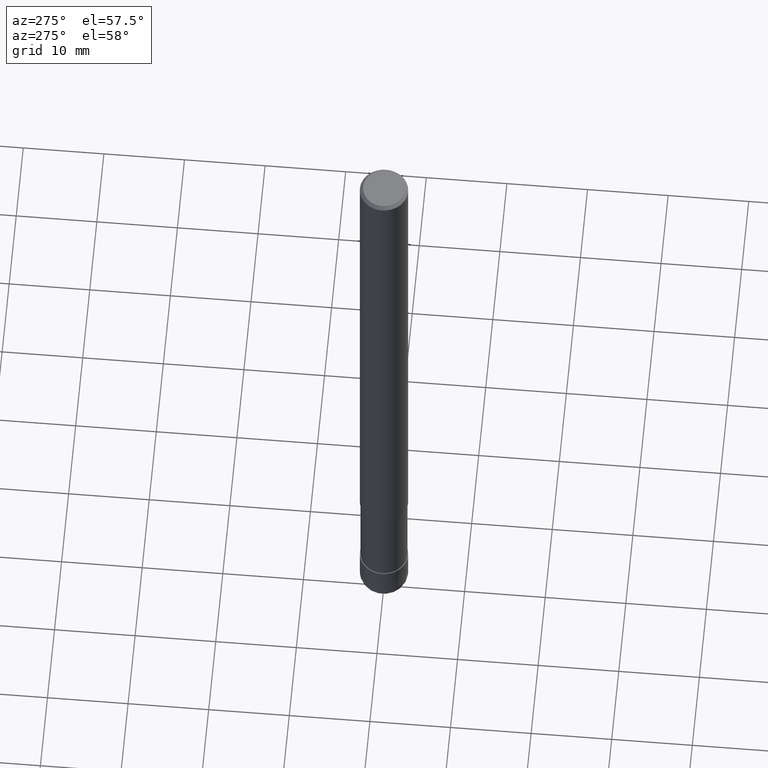
[diagram: clean part render]
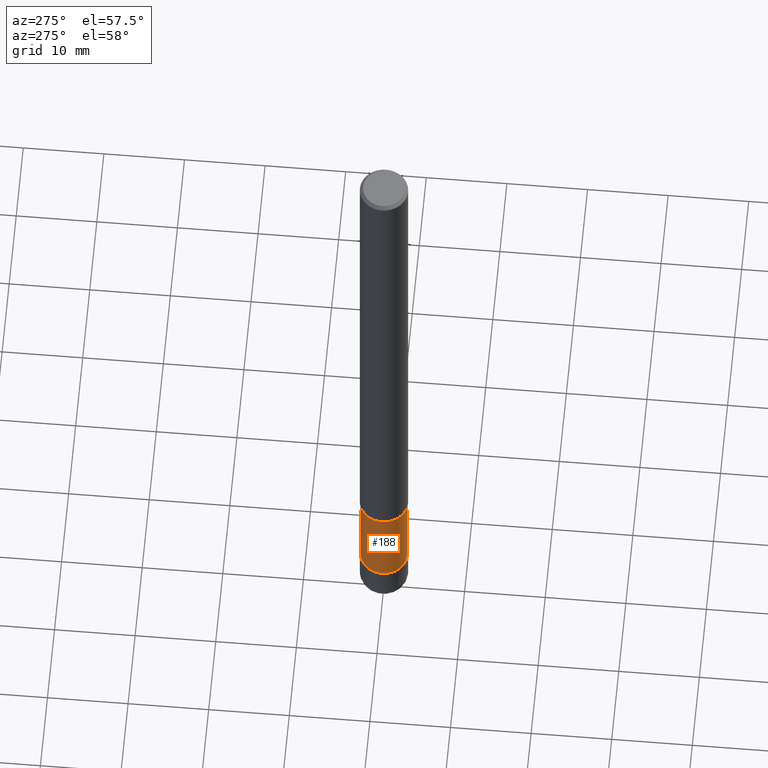
[diagram: same view with one face highlighted and labeled with its STEP entity id]
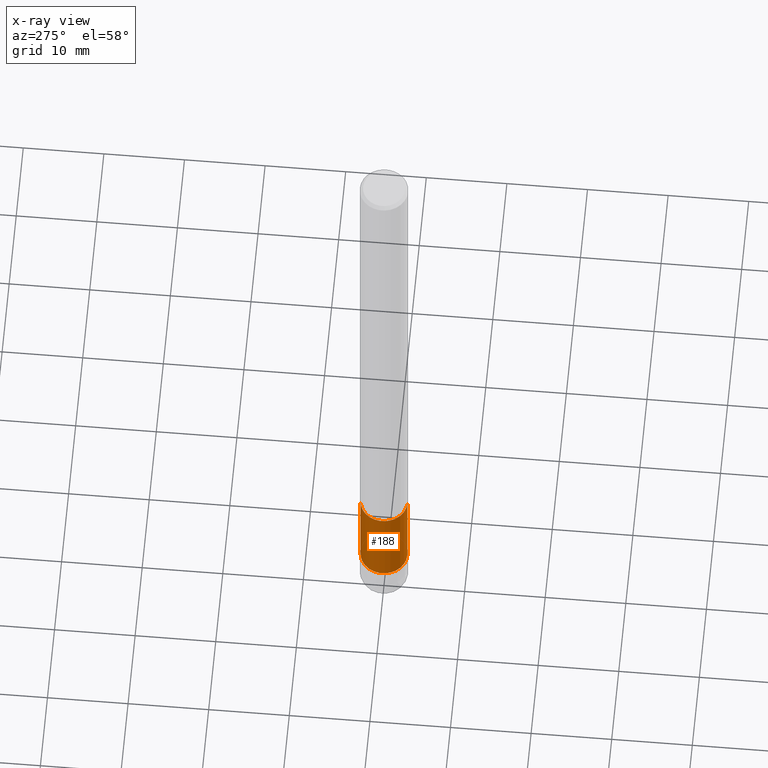
[diagram: x-ray of the same camera — body ghosted, the highlighted face saturated]
A machine part, auxiliary view. The second image highlights one B-rep face of the part: STEP entity #188.
The next image is the same camera in x-ray: the body ghosted, the highlighted face saturated — about 0% of this face is hidden behind the body in this view.
In plain terms, the highlighted cylindrical surface (edge-blend (fillet) strip) has radius 2.9099 mm, axis along (-0, -0, 1).
Its self-contained STEP definition (entity closure, byte-faithful):
#98=EDGE_CURVE('',#206,#120,#236,.T.);
#108=VERTEX_POINT('',#246);
#120=VERTEX_POINT('',#258);
#142=VERTEX_POINT('',#283);
#150=EDGE_CURVE('',#108,#142,#291,.T.);
#156=EDGE_CURVE('',#120,#108,#297,.T.);
#162=EDGE_CURVE('',#206,#142,#303,.T.);
#188=ADVANCED_FACE('',(#336),#337,.T.);
#206=VERTEX_POINT('',#359);
#236=LINE('',#383,#384);
#246=CARTESIAN_POINT('',(0.0,2.90995,-72.0));
#258=CARTESIAN_POINT('',(3.56354325930543E-016,-2.90995,-72.0));
#283=CARTESIAN_POINT('',(0.0,2.90995,-84.0));
#291=LINE('',#453,#454);
#297=CIRCLE('',#464,2.90995);
#303=CIRCLE('',#472,2.90995);
#336=FACE_OUTER_BOUND('',#507,.T.);
#337=CYLINDRICAL_SURFACE('',#508,2.90995);
#359=CARTESIAN_POINT('',(3.56354325930543E-016,-2.90995,-84.0));
#383=CARTESIAN_POINT('',(3.56354325930543E-016,-2.90995,-78.0));
#384=VECTOR('',#549,1.0);
#453=CARTESIAN_POINT('',(-3.56354325930543E-016,2.90995,-78.0));
#454=VECTOR('',#600,1.0);
#464=AXIS2_PLACEMENT_3D('',#605,#606,#607);
#472=AXIS2_PLACEMENT_3D('',#611,#612,#613);
#507=EDGE_LOOP('',(#664,#665,#666,#667));
#508=AXIS2_PLACEMENT_3D('',#668,#669,#670);
#549=DIRECTION('',(-0.0,-0.0,1.0));
#600=DIRECTION('',(0.0,0.0,-1.0));
#605=CARTESIAN_POINT('',(0.0,0.0,-72.0));
#606=DIRECTION('',(0.0,0.0,-1.0));
#607=DIRECTION('',(0.0,1.0,0.0));
#611=CARTESIAN_POINT('',(0.0,0.0,-84.0));
#612=DIRECTION('',(0.0,0.0,-1.0));
#613=DIRECTION('',(0.0,1.0,0.0));
#664=ORIENTED_EDGE('',*,*,#150,.T.);
#665=ORIENTED_EDGE('',*,*,#162,.F.);
#666=ORIENTED_EDGE('',*,*,#98,.T.);
#667=ORIENTED_EDGE('',*,*,#156,.T.);
#668=CARTESIAN_POINT('',(0.0,0.0,-78.0));
#669=DIRECTION('',(-0.0,-0.0,1.0));
#670=DIRECTION('',(0.0,1.0,0.0));